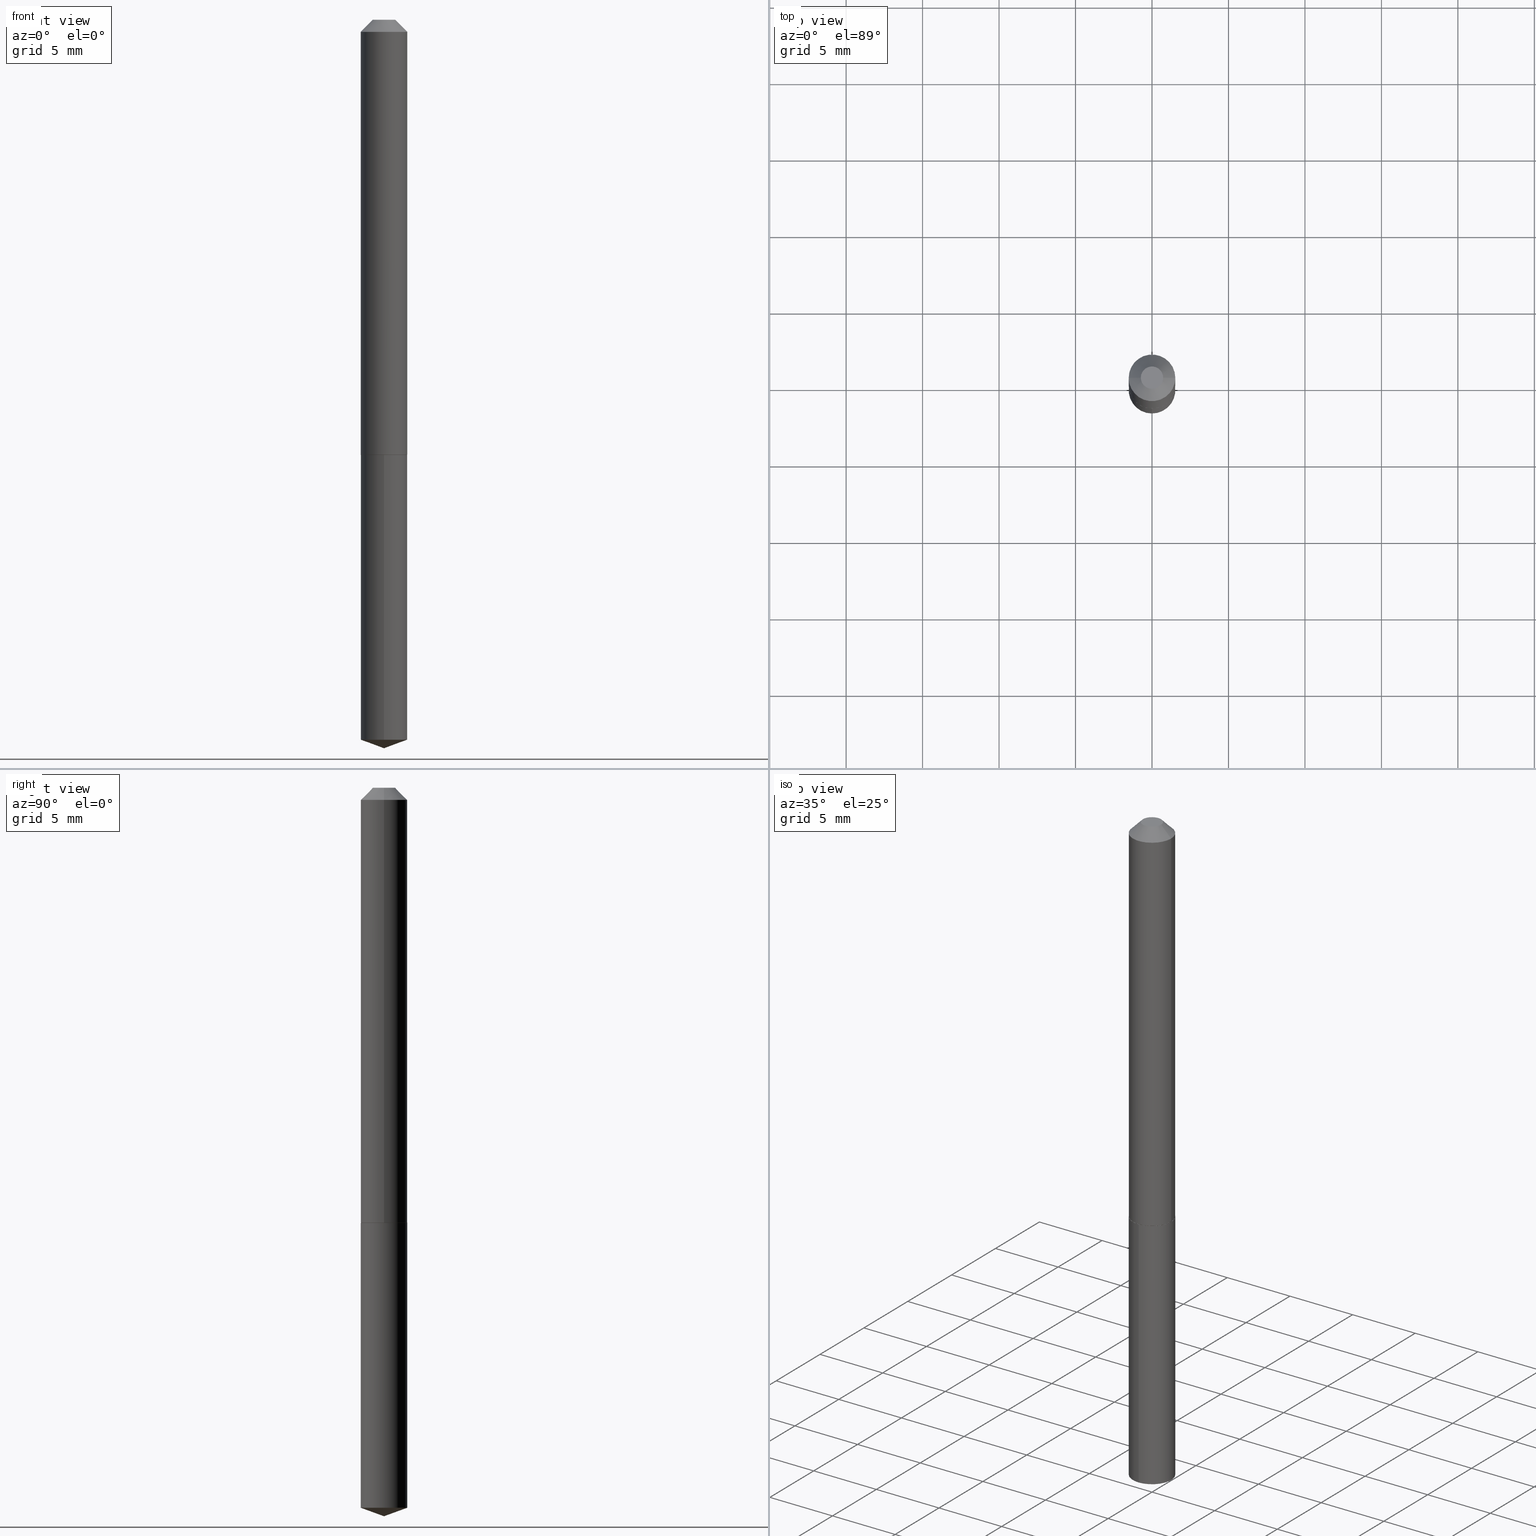
[diagram: canonical four-view strip — front | top / right | iso, engineering-drawing reading convention]
A machine part, canonical four-view strip (front | top / right | iso — engineering-drawing reading convention). The complete STEP part file that produces these views, byte-faithful:
ISO-10303-21;
HEADER;
FILE_DESCRIPTION (( 'STEP AP203' ),
    '1' );
FILE_NAME ('56031.STEP',
    '2024-04-22T19:52:19',
    ( '' ),
    ( '' ),
    'SwSTEP 2.0',
    'SolidWorks 2023',
    '' );
FILE_SCHEMA (( 'CONFIG_CONTROL_DESIGN' ));
ENDSEC;

DATA;
#1 = EDGE_CURVE ( 'NONE', #187, #121, #122, .T. ) ;
#2 = ORIENTED_EDGE ( 'NONE', *, *, #25, .T. ) ;
#3 = DIMENSIONAL_EXPONENTS ( 1.000000000000000000, 0.000000000000000000, 0.000000000000000000, 0.000000000000000000, 0.000000000000000000, 0.000000000000000000, 0.000000000000000000 ) ;
#4 = CARTESIAN_POINT ( 'NONE',  ( 4.534350247009199465E-29, -1.339308046643845730E-15, -1.120000000000000107 ) ) ;
#5 = ADVANCED_FACE ( 'NONE', ( #229 ), #17, .T. ) ;
#6 = AXIS2_PLACEMENT_3D ( 'NONE', #273, #215, #244 ) ;
#7 = VECTOR ( 'NONE', #178, 39.37007874015748143 ) ;
#8 = ORIENTED_EDGE ( 'NONE', *, *, #308, .T. ) ;
#9 = DIRECTION ( 'NONE',  ( -2.445468806185136597E-29, 3.491481338843145583E-15, 1.000000000000000000 ) ) ;
#10 =( NAMED_UNIT ( * ) PLANE_ANGLE_UNIT ( ) SI_UNIT ( $, .RADIAN. ) );
#11 = DIRECTION ( 'NONE',  ( -1.000000000000000000, 6.982962677686265922E-15, -4.876176775795935793E-29 ) ) ;
#12 = CC_DESIGN_PERSON_AND_ORGANIZATION_ASSIGNMENT ( #38, #216, ( #224 ) ) ;
#13 = CC_DESIGN_DATE_AND_TIME_ASSIGNMENT ( #129, #345, ( #291 ) ) ;
#14 = CARTESIAN_POINT ( 'NONE',  ( 7.642090019328600035E-31, -1.091087918388489897E-16, -0.03125000000000020123 ) ) ;
#15 = ADVANCED_FACE ( 'NONE', ( #86 ), #22, .T. ) ;
#16 = FACE_OUTER_BOUND ( 'NONE', #243, .T. ) ;
#17 = CYLINDRICAL_SURFACE ( 'NONE', #280, 0.05999999999999999778 ) ;
#18 = CC_DESIGN_PERSON_AND_ORGANIZATION_ASSIGNMENT ( #389, #167, ( #152 ) ) ;
#19 = VECTOR ( 'NONE', #195, 39.37007874015748143 ) ;
#20 = FACE_OUTER_BOUND ( 'NONE', #66, .T. ) ;
#21 = PERSON_AND_ORGANIZATION ( #159, #387 ) ;
#22 = CYLINDRICAL_SURFACE ( 'NONE', #116, 0.06000000000000007411 ) ;
#23 = CYLINDRICAL_SURFACE ( 'NONE', #316, 0.05999999999999999778 ) ;
#24 = VERTEX_POINT ( 'NONE', #382 ) ;
#25 = EDGE_CURVE ( 'NONE', #121, #187, #303, .T. ) ;
#26 = APPROVAL_STATUS ( 'not_yet_approved' ) ;
#27 = EDGE_LOOP ( 'NONE', ( #267, #359, #164, #363 ) ) ;
#28 = DIRECTION ( 'NONE',  ( -2.445468806185136877E-29, 3.491481338843145188E-15, 1.000000000000000000 ) ) ;
#29 = ORIENTED_EDGE ( 'NONE', *, *, #325, .T. ) ;
#30 = DATE_AND_TIME ( #214, #239 ) ;
#31 = FACE_OUTER_BOUND ( 'NONE', #356, .T. ) ;
#32 = CIRCLE ( 'NONE', #63, 0.05999999999999999778 ) ;
#33 = CC_DESIGN_APPROVAL ( #381, ( #152 ) ) ;
#34 = DIRECTION ( 'NONE',  ( -6.982962677686265922E-15, -1.000000000000000000, 4.553079989440439092E-15 ) ) ;
#35 = DATE_TIME_ROLE ( 'classification_date' ) ;
#36 = VERTEX_POINT ( 'NONE', #377 ) ;
#37 = EDGE_CURVE ( 'NONE', #42, #270, #379, .T. ) ;
#38 = PERSON_AND_ORGANIZATION ( #159, #387 ) ;
#39 = ORIENTED_EDGE ( 'NONE', *, *, #201, .T. ) ;
#40 = LINE ( 'NONE', #368, #314 ) ;
#41 =( GEOMETRIC_REPRESENTATION_CONTEXT ( 3 ) GLOBAL_UNCERTAINTY_ASSIGNED_CONTEXT ( ( #288 ) ) GLOBAL_UNIT_ASSIGNED_CONTEXT ( ( #144, #10, #143 ) ) REPRESENTATION_CONTEXT ( 'NONE', 'WORKASPACE' ) );
#42 = VERTEX_POINT ( 'NONE', #171 ) ;
#43 = DIRECTION ( 'NONE',  ( 0.7071067811864750752, -2.468850131081498176E-15, 0.7071067811866199593 ) ) ;
#44 =( LENGTH_UNIT ( ) NAMED_UNIT ( * ) SI_UNIT ( $, .METRE. ) );
#45 = ORIENTED_EDGE ( 'NONE', *, *, #84, .F. ) ;
#46 = LINE ( 'NONE', #177, #208 ) ;
#47 = COORDINATED_UNIVERSAL_TIME_OFFSET ( 5, 0, .BEHIND. ) ;
#48 = CARTESIAN_POINT ( 'NONE',  ( -9.168627954203891345E-28, 1.309230568771449334E-13, 37.49507874015748143 ) ) ;
#49 = AXIS2_PLACEMENT_3D ( 'NONE', #14, #113, #284 ) ;
#50 = EDGE_CURVE ( 'NONE', #366, #42, #131, .T. ) ;
#51 = FACE_OUTER_BOUND ( 'NONE', #319, .T. ) ;
#52 = CARTESIAN_POINT ( 'NONE',  ( 2.738925062927352899E-29, -3.910459099504323400E-15, -1.120000000000000107 ) ) ;
#53 = DIRECTION ( 'NONE',  ( 1.000000000000000000, -6.982962677686266711E-15, 0.000000000000000000 ) ) ;
#54 = COORDINATED_UNIVERSAL_TIME_OFFSET ( 5, 0, .BEHIND. ) ;
#55 = CONICAL_SURFACE ( 'NONE', #253, 0.06000000000000014350, 0.7853981633973459164 ) ;
#56 = COORDINATED_UNIVERSAL_TIME_OFFSET ( 5, 0, .BEHIND. ) ;
#57 = DIRECTION ( 'NONE',  ( -0.7071067811865452413, 2.468850131082233000E-15, -0.7071067811865497932 ) ) ;
#58 = EDGE_CURVE ( 'NONE', #270, #168, #371, .T. ) ;
#59 = VERTEX_POINT ( 'NONE', #376 ) ;
#60 = EDGE_CURVE ( 'NONE', #138, #121, #233, .T. ) ;
#61 = APPROVAL_STATUS ( 'not_yet_approved' ) ;
#62 = ORIENTED_EDGE ( 'NONE', *, *, #37, .F. ) ;
#63 = AXIS2_PLACEMENT_3D ( 'NONE', #226, #337, #310 ) ;
#64 = APPLICATION_PROTOCOL_DEFINITION ( 'international standard', 'config_control_design', 1994, #112 ) ;
#65 = LOCAL_TIME ( 15, 52, 19.00000000000000000, #47 ) ;
#66 = EDGE_LOOP ( 'NONE', ( #2, #318, #247, #236 ) ) ;
#67 = EDGE_CURVE ( 'NONE', #36, #296, #94, .T. ) ;
#68 = ORIENTED_EDGE ( 'NONE', *, *, #140, .T. ) ;
#69 = SECURITY_CLASSIFICATION_LEVEL ( 'unclassified' ) ;
#70 = EDGE_LOOP ( 'NONE', ( #390, #194 ) ) ;
#71 = ORIENTED_EDGE ( 'NONE', *, *, #67, .F. ) ;
#72 = EDGE_LOOP ( 'NONE', ( #313, #156, #190 ) ) ;
#73 = CARTESIAN_POINT ( 'NONE',  ( -0.06000000000000007411, 4.263256414560606381E-16, -2.951361054152947267E-30 ) ) ;
#74 = DIRECTION ( 'NONE',  ( 0.000000000000000000, 0.000000000000000000, 1.000000000000000000 ) ) ;
#75 = DESIGN_CONTEXT ( 'detailed design', #172, 'design' ) ;
#76 = ORIENTED_EDGE ( 'NONE', *, *, #58, .F. ) ;
#77 = CLOSED_SHELL ( 'NONE', ( #115, #203, #361, #257, #354, #15, #385, #145 ) ) ;
#78 = DIRECTION ( 'NONE',  ( 1.000000000000000000, -6.982962677686265922E-15, 4.876225828469308321E-29 ) ) ;
#79 = APPROVAL_DATE_TIME ( #290, #381 ) ;
#80 = CARTESIAN_POINT ( 'NONE',  ( 2.737702328524260097E-29, -3.908713358834901896E-15, -1.119499999999999940 ) ) ;
#81 = CARTESIAN_POINT ( 'NONE',  ( 7.642090019328600035E-31, -1.091087918388489897E-16, -0.03125000000000020123 ) ) ;
#82 = DIRECTION ( 'NONE',  ( 1.000000000000000000, -6.982962677686268288E-15, 0.000000000000000000 ) ) ;
#83 = CARTESIAN_POINT ( 'NONE',  ( 1.272805107011465365E-47, -1.817228364506215966E-33, -5.204748896376257902E-19 ) ) ;
#84 = EDGE_CURVE ( 'NONE', #138, #187, #184, .T. ) ;
#85 = APPROVAL_STATUS ( 'not_yet_approved' ) ;
#86 = FACE_OUTER_BOUND ( 'NONE', #241, .T. ) ;
#87 = APPROVAL_ROLE ( '' ) ;
#88 = APPROVAL ( #61, 'UNSPECIFIED' ) ;
#89 = DIRECTION ( 'NONE',  ( -6.561838499445205585E-15, -0.9396926207859077618, 0.3420201433256702117 ) ) ;
#90 = CIRCLE ( 'NONE', #352, 0.06000000000000014350 ) ;
#91 = AXIS2_PLACEMENT_3D ( 'NONE', #338, #74, #263 ) ;
#92 = ADVANCED_FACE ( 'NONE', ( #237 ), #146, .T. ) ;
#93 = PERSON_AND_ORGANIZATION ( #159, #387 ) ;
#94 = LINE ( 'NONE', #317, #386 ) ;
#95 = CARTESIAN_POINT ( 'NONE',  ( -0.06000000000000014350, -3.482387717378840223E-15, -1.119499999999999940 ) ) ;
#96 = DIRECTION ( 'NONE',  ( -2.445293592183444797E-29, 3.491732255266129750E-15, 1.000000000000000000 ) ) ;
#97 = VECTOR ( 'NONE', #89, 39.37007874015748854 ) ;
#98 = PERSON_AND_ORGANIZATION_ROLE ( 'creator' ) ;
#99 = EDGE_LOOP ( 'NONE', ( #126, #108 ) ) ;
#100 = AXIS2_PLACEMENT_3D ( 'NONE', #256, #248, #179 ) ;
#101 = ADVANCED_FACE ( 'NONE', ( #31 ), #163, .F. ) ;
#102 = LOCAL_TIME ( 15, 52, 19.00000000000000000, #162 ) ;
#103 = CARTESIAN_POINT ( 'NONE',  ( 4.263256414560874594E-16, 0.05999999999999609118, -1.120000000000000329 ) ) ;
#104 = CARTESIAN_POINT ( 'NONE',  ( 2.738925062927352899E-29, -3.910459099504323400E-15, -1.120000000000000107 ) ) ;
#105 = LINE ( 'NONE', #103, #7 ) ;
#106 = ORIENTED_EDGE ( 'NONE', *, *, #150, .T. ) ;
#107 = DIRECTION ( 'NONE',  ( -6.982962677686265922E-15, -1.000000000000000000, 4.553079989440439092E-15 ) ) ;
#108 = ORIENTED_EDGE ( 'NONE', *, *, #205, .T. ) ;
#109 = AXIS2_PLACEMENT_3D ( 'NONE', #48, #228, #114 ) ;
#110 = CARTESIAN_POINT ( 'NONE',  ( 0.000000000000000000, 0.000000000000000000, 0.000000000000000000 ) ) ;
#111 = AXIS2_PLACEMENT_3D ( 'NONE', #83, #139, #204 ) ;
#112 = APPLICATION_CONTEXT ( 'configuration controlled 3d designs of mechanical parts and assemblies' ) ;
#113 = DIRECTION ( 'NONE',  ( -2.445468806185136597E-29, 3.491481338843145583E-15, 1.000000000000000000 ) ) ;
#114 = DIRECTION ( 'NONE',  ( -6.982962677686268288E-15, -1.000000000000000000, 3.475157955500709564E-15 ) ) ;
#115 = ADVANCED_FACE ( 'NONE', ( #16 ), #251, .T. ) ;
#116 = AXIS2_PLACEMENT_3D ( 'NONE', #351, #374, #349 ) ;
#117 = LOCAL_TIME ( 15, 52, 19.00000000000000000, #54 ) ;
#118 = PRODUCT_DEFINITION_SHAPE ( 'NONE', 'NONE',  #291 ) ;
#119 = DIRECTION ( 'NONE',  ( -2.445468806185136597E-29, 3.491481338843145583E-15, 1.000000000000000000 ) ) ;
#120 = DIRECTION ( 'NONE',  ( -6.982962677686265922E-15, -1.000000000000000000, 4.553079989440439092E-15 ) ) ;
#121 = VERTEX_POINT ( 'NONE', #254 ) ;
#122 = CIRCLE ( 'NONE', #341, 0.05999999999999999778 ) ;
#123 = CIRCLE ( 'NONE', #135, 0.02875000000000000125 ) ;
#124 = CALENDAR_DATE ( 2024, 22, 4 ) ;
#125 = PERSON_AND_ORGANIZATION_ROLE ( 'design_owner' ) ;
#126 = ORIENTED_EDGE ( 'NONE', *, *, #255, .T. ) ;
#127 = DIRECTION ( 'NONE',  ( 6.676917655467970496E-15, 0.9396926207859102043, 0.3420201433256636059 ) ) ;
#128 = MANIFOLD_SOLID_BREP ( 'Body-Move/Copy2[1]', #174 ) ;
#129 = DATE_AND_TIME ( #271, #102 ) ;
#130 = ORIENTED_EDGE ( 'NONE', *, *, #242, .T. ) ;
#131 = CIRCLE ( 'NONE', #274, 0.05950000000000021244 ) ;
#132 = AXIS2_PLACEMENT_3D ( 'NONE', #4, #147, #306 ) ;
#133 = CARTESIAN_POINT ( 'NONE',  ( 7.642090019328600035E-31, -1.091087918388489897E-16, -0.03125000000000020123 ) ) ;
#134 = VECTOR ( 'NONE', #127, 39.37007874015749564 ) ;
#135 = AXIS2_PLACEMENT_3D ( 'NONE', #333, #279, #78 ) ;
#136 = CARTESIAN_POINT ( 'NONE',  ( -0.06000000000000014350, -3.482387717378840223E-15, -1.119499999999999940 ) ) ;
#137 = ADVANCED_FACE ( 'NONE', ( #176 ), #207, .T. ) ;
#138 = VERTEX_POINT ( 'NONE', #331 ) ;
#139 = DIRECTION ( 'NONE',  ( -2.445468806185136597E-29, 3.491481338843145583E-15, 1.000000000000000000 ) ) ;
#140 = EDGE_CURVE ( 'NONE', #24, #296, #217, .T. ) ;
#141 = EDGE_LOOP ( 'NONE', ( #238, #294, #300, #323 ) ) ;
#142 = CARTESIAN_POINT ( 'NONE',  ( -4.189777606611485306E-16, -0.06000000000000391132, -1.119999999999999885 ) ) ;
#143 =( NAMED_UNIT ( * ) SI_UNIT ( $, .STERADIAN. ) SOLID_ANGLE_UNIT ( ) );
#144 =( CONVERSION_BASED_UNIT ( 'INCH', #358 ) LENGTH_UNIT ( ) NAMED_UNIT ( #3 ) );
#145 = ADVANCED_FACE ( 'NONE', ( #225 ), #312, .F. ) ;
#146 = CONICAL_SURFACE ( 'NONE', #188, 108.1684023407337918, 1.221730476396032605 ) ;
#147 = DIRECTION ( 'NONE',  ( -2.438088387897960049E-29, 3.491481338843145188E-15, 1.000000000000000000 ) ) ;
#148 = DIRECTION ( 'NONE',  ( 2.438088387897960049E-29, -3.491481338843145188E-15, -1.000000000000000000 ) ) ;
#149 = DIRECTION ( 'NONE',  ( -2.445468806185136597E-29, 3.491481338843145583E-15, 1.000000000000000000 ) ) ;
#150 = EDGE_CURVE ( 'NONE', #59, #24, #40, .T. ) ;
#151 = AXIS2_PLACEMENT_3D ( 'NONE', #309, #148, #11 ) ;
#152 = SECURITY_CLASSIFICATION ( '', '', #69 ) ;
#153 = EDGE_CURVE ( 'NONE', #270, #296, #364, .T. ) ;
#154 = CARTESIAN_POINT ( 'NONE',  ( 4.531720880130055286E-29, -6.470463755813608205E-15, -1.853161785944028139 ) ) ;
#155 = APPROVAL_ROLE ( '' ) ;
#156 = ORIENTED_EDGE ( 'NONE', *, *, #84, .T. ) ;
#157 = DIRECTION ( 'NONE',  ( -2.445293592183444797E-29, 3.491732255266129750E-15, 1.000000000000000000 ) ) ;
#158 = APPROVAL_ROLE ( '' ) ;
#159 = PERSON ( 'UNSPECIFIED', 'UNSPECIFIED', 'UNSPECIFIED', ('UNSPECIFIED'), ('UNSPECIFIED'), ('UNSPECIFIED') ) ;
#160 = ORIENTED_EDGE ( 'NONE', *, *, #255, .F. ) ;
#161 = LOCAL_TIME ( 15, 52, 19.00000000000000000, #265 ) ;
#162 = COORDINATED_UNIVERSAL_TIME_OFFSET ( 5, 0, .BEHIND. ) ;
#163 = PLANE ( 'NONE',  #6 ) ;
#164 = ORIENTED_EDGE ( 'NONE', *, *, #189, .F. ) ;
#165 = EDGE_CURVE ( 'NONE', #296, #24, #32, .T. ) ;
#166 = AXIS2_PLACEMENT_3D ( 'NONE', #81, #175, #219 ) ;
#167 = PERSON_AND_ORGANIZATION_ROLE ( 'classification_officer' ) ;
#168 = VERTEX_POINT ( 'NONE', #367 ) ;
#169 = ORIENTED_EDGE ( 'NONE', *, *, #210, .T. ) ;
#170 = CC_DESIGN_DATE_AND_TIME_ASSIGNMENT ( #192, #35, ( #152 ) ) ;
#171 = CARTESIAN_POINT ( 'NONE',  ( -0.05950000000000021244, -3.485036944552951424E-15, -1.120000000000000107 ) ) ;
#172 = APPLICATION_CONTEXT ( 'configuration controlled 3d designs of mechanical parts and assemblies' ) ;
#173 = FACE_OUTER_BOUND ( 'NONE', #380, .T. ) ;
#174 = CLOSED_SHELL ( 'NONE', ( #295, #92, #137, #5, #101 ) ) ;
#175 = DIRECTION ( 'NONE',  ( 2.445468806185136597E-29, -3.491481338843145583E-15, -1.000000000000000000 ) ) ;
#176 = FACE_OUTER_BOUND ( 'NONE', #278, .T. ) ;
#177 = CARTESIAN_POINT ( 'NONE',  ( 0.06000000000000014350, -4.327691119496078530E-15, -1.119499999999999940 ) ) ;
#178 = DIRECTION ( 'NONE',  ( -2.445293592183444516E-29, 3.491732255266129750E-15, 1.000000000000000000 ) ) ;
#179 = DIRECTION ( 'NONE',  ( -6.982962677686265922E-15, -1.000000000000000000, 4.553079989440439092E-15 ) ) ;
#180 = CC_DESIGN_PERSON_AND_ORGANIZATION_ASSIGNMENT ( #93, #383, ( #291 ) ) ;
#181 = DIRECTION ( 'NONE',  ( 1.000000000000000000, -6.982962677686268288E-15, 0.000000000000000000 ) ) ;
#182 = AXIS2_PLACEMENT_3D ( 'NONE', #261, #119, #181 ) ;
#183 = CIRCLE ( 'NONE', #342, 0.05950000000000021244 ) ;
#184 = LINE ( 'NONE', #326, #134 ) ;
#185 = ORIENTED_EDGE ( 'NONE', *, *, #320, .T. ) ;
#186 = APPROVAL_DATE_TIME ( #348, #324 ) ;
#187 = VERTEX_POINT ( 'NONE', #221 ) ;
#188 = AXIS2_PLACEMENT_3D ( 'NONE', #212, #96, #321 ) ;
#189 = EDGE_CURVE ( 'NONE', #168, #270, #90, .T. ) ;
#190 = ORIENTED_EDGE ( 'NONE', *, *, #25, .F. ) ;
#191 = PRODUCT ( '56031', '56031', '', ( #375 ) ) ;
#192 = DATE_AND_TIME ( #276, #65 ) ;
#193 = ORIENTED_EDGE ( 'NONE', *, *, #58, .T. ) ;
#194 = ORIENTED_EDGE ( 'NONE', *, *, #308, .F. ) ;
#195 = DIRECTION ( 'NONE',  ( -2.445468806185136877E-29, 3.491481338843145188E-15, 1.000000000000000000 ) ) ;
#196 = AXIS2_PLACEMENT_3D ( 'NONE', #110, #9, #340 ) ;
#197 = VERTEX_POINT ( 'NONE', #282 ) ;
#198 = FACE_OUTER_BOUND ( 'NONE', #70, .T. ) ;
#199 = DIRECTION ( 'NONE',  ( -2.445293592183444797E-29, 3.491732255266129750E-15, 1.000000000000000000 ) ) ;
#200 = CC_DESIGN_PERSON_AND_ORGANIZATION_ASSIGNMENT ( #293, #98, ( #224 ) ) ;
#201 = EDGE_CURVE ( 'NONE', #197, #272, #266, .T. ) ;
#202 = DIRECTION ( 'NONE',  ( 1.000000000000000000, -6.982962677686268288E-15, 0.000000000000000000 ) ) ;
#203 = ADVANCED_FACE ( 'NONE', ( #250 ), #287, .T. ) ;
#204 = DIRECTION ( 'NONE',  ( 1.000000000000000000, -6.982962677686265922E-15, 4.876225828469308321E-29 ) ) ;
#205 = EDGE_CURVE ( 'NONE', #59, #36, #357, .T. ) ;
#206 = DIRECTION ( 'NONE',  ( -2.445293592183444797E-29, 3.491732255266129750E-15, 1.000000000000000000 ) ) ;
#207 = CONICAL_SURFACE ( 'NONE', #109, 108.1684023407337918, 1.221730476396032605 ) ;
#208 = VECTOR ( 'NONE', #43, 39.37007874015748143 ) ;
#209 = APPROVAL_DATE_TIME ( #30, #88 ) ;
#210 = EDGE_CURVE ( 'NONE', #366, #168, #46, .T. ) ;
#211 = PERSON_AND_ORGANIZATION ( #159, #387 ) ;
#212 = CARTESIAN_POINT ( 'NONE',  ( -9.168627954203891345E-28, 1.309230568771449334E-13, 37.49507874015748143 ) ) ;
#213 = APPROVAL_PERSON_ORGANIZATION ( #211, #88, #87 ) ;
#214 = CALENDAR_DATE ( 2024, 22, 4 ) ;
#215 = DIRECTION ( 'NONE',  ( 2.445293592183444516E-29, -3.491732255266129750E-15, -1.000000000000000000 ) ) ;
#216 = PERSON_AND_ORGANIZATION_ROLE ( 'design_supplier' ) ;
#217 = CIRCLE ( 'NONE', #49, 0.05999999999999999778 ) ;
#218 = VECTOR ( 'NONE', #28, 39.37007874015748143 ) ;
#219 = DIRECTION ( 'NONE',  ( -1.000000000000000000, 6.982962677686267499E-15, 0.000000000000000000 ) ) ;
#220 = DIRECTION ( 'NONE',  ( -1.000000000000000000, 6.982962677686267499E-15, 0.000000000000000000 ) ) ;
#221 = CARTESIAN_POINT ( 'NONE',  ( 4.263256414561051594E-16, 0.05999999999999350991, -1.853161785944028361 ) ) ;
#222 = DIRECTION ( 'NONE',  ( 1.000000000000000000, -6.982962677686266711E-15, 0.000000000000000000 ) ) ;
#223 = VECTOR ( 'NONE', #347, 39.37007874015748143 ) ;
#224 = PRODUCT_DEFINITION_FORMATION_WITH_SPECIFIED_SOURCE ( 'ANY', '', #191, .NOT_KNOWN. ) ;
#225 = FACE_OUTER_BOUND ( 'NONE', #99, .T. ) ;
#226 = CARTESIAN_POINT ( 'NONE',  ( 7.642090019328600035E-31, -1.091087918388489897E-16, -0.03125000000000020123 ) ) ;
#227 = DIRECTION ( 'NONE',  ( -2.445468806185136597E-29, 3.491481338843145583E-15, 1.000000000000000000 ) ) ;
#228 = DIRECTION ( 'NONE',  ( -2.445293592183444797E-29, 3.491732255266129750E-15, 1.000000000000000000 ) ) ;
#229 = FACE_OUTER_BOUND ( 'NONE', #299, .T. ) ;
#230 = CARTESIAN_POINT ( 'NONE',  ( 2.738925062927352899E-29, -3.910459099504323400E-15, -1.120000000000000107 ) ) ;
#231 = DIRECTION ( 'NONE',  ( -2.445293592183444797E-29, 3.491732255266129750E-15, 1.000000000000000000 ) ) ;
#232 = CARTESIAN_POINT ( 'NONE',  ( -4.189777606611485306E-16, -0.06000000000000391132, -1.119999999999999885 ) ) ;
#233 = LINE ( 'NONE', #260, #97 ) ;
#234 = CALENDAR_DATE ( 2024, 22, 4 ) ;
#235 = PERSON_AND_ORGANIZATION ( #159, #387 ) ;
#236 = ORIENTED_EDGE ( 'NONE', *, *, #325, .F. ) ;
#237 = FACE_OUTER_BOUND ( 'NONE', #72, .T. ) ;
#238 = ORIENTED_EDGE ( 'NONE', *, *, #189, .T. ) ;
#239 = LOCAL_TIME ( 15, 52, 19.00000000000000000, #56 ) ;
#240 = ORIENTED_EDGE ( 'NONE', *, *, #165, .F. ) ;
#241 = EDGE_LOOP ( 'NONE', ( #355, #193, #185, #240 ) ) ;
#242 = EDGE_CURVE ( 'NONE', #272, #197, #259, .T. ) ;
#243 = EDGE_LOOP ( 'NONE', ( #264, #106, #68, #71 ) ) ;
#244 = DIRECTION ( 'NONE',  ( 6.982962677686265922E-15, 1.000000000000000000, -3.491732255266129750E-15 ) ) ;
#245 = CARTESIAN_POINT ( 'NONE',  ( -0.05999999999999999778, -1.582585433880813825E-15, -0.03125000000000020123 ) ) ;
#246 = MANIFOLD_SOLID_BREP ( 'Body-Move/Copy2[2]', #77 ) ;
#247 = ORIENTED_EDGE ( 'NONE', *, *, #242, .F. ) ;
#248 = DIRECTION ( 'NONE',  ( -2.445293592183444797E-29, 3.491732255266129750E-15, 1.000000000000000000 ) ) ;
#249 = ORIENTED_EDGE ( 'NONE', *, *, #1, .T. ) ;
#250 = FACE_OUTER_BOUND ( 'NONE', #141, .T. ) ;
#251 = CONICAL_SURFACE ( 'NONE', #166, 0.05999999999999999778, 0.7853981633974450594 ) ;
#252 = DIRECTION ( 'NONE',  ( -2.445293592183444516E-29, 3.491732255266129750E-15, 1.000000000000000000 ) ) ;
#253 = AXIS2_PLACEMENT_3D ( 'NONE', #286, #227, #82 ) ;
#254 = CARTESIAN_POINT ( 'NONE',  ( -4.189777606611305347E-16, -0.06000000000000644401, -1.853161785944027695 ) ) ;
#255 = EDGE_CURVE ( 'NONE', #36, #59, #123, .T. ) ;
#256 = CARTESIAN_POINT ( 'NONE',  ( 2.738925062927352899E-29, -3.910459099504323400E-15, -1.120000000000000107 ) ) ;
#257 = ADVANCED_FACE ( 'NONE', ( #198 ), #285, .F. ) ;
#258 = LINE ( 'NONE', #232, #268 ) ;
#259 = CIRCLE ( 'NONE', #297, 0.05999999999999999778 ) ;
#260 = CARTESIAN_POINT ( 'NONE',  ( 4.584925485343958748E-29, -6.546997978623994317E-15, -1.875000000000000000 ) ) ;
#261 = CARTESIAN_POINT ( 'NONE',  ( 2.737702328524260097E-29, -3.908713358834901896E-15, -1.119499999999999940 ) ) ;
#262 = DIRECTION ( 'NONE',  ( -6.982962677686265922E-15, -1.000000000000000000, 4.553079989440439092E-15 ) ) ;
#263 = DIRECTION ( 'NONE',  ( 1.000000000000000000, 0.000000000000000000, 0.000000000000000000 ) ) ;
#264 = ORIENTED_EDGE ( 'NONE', *, *, #205, .F. ) ;
#265 = COORDINATED_UNIVERSAL_TIME_OFFSET ( 5, 0, .BEHIND. ) ;
#266 = CIRCLE ( 'NONE', #100, 0.05999999999999999778 ) ;
#267 = ORIENTED_EDGE ( 'NONE', *, *, #50, .T. ) ;
#268 = VECTOR ( 'NONE', #252, 39.37007874015748143 ) ;
#269 = DIRECTION ( 'NONE',  ( -2.445293592183444797E-29, 3.491732255266129750E-15, 1.000000000000000000 ) ) ;
#270 = VERTEX_POINT ( 'NONE', #136 ) ;
#271 = CALENDAR_DATE ( 2024, 22, 4 ) ;
#272 = VERTEX_POINT ( 'NONE', #142 ) ;
#273 = CARTESIAN_POINT ( 'NONE',  ( 2.738925062927352899E-29, -3.910459099504323400E-15, -1.120000000000000107 ) ) ;
#274 = AXIS2_PLACEMENT_3D ( 'NONE', #332, #343, #53 ) ;
#275 = CC_DESIGN_APPROVAL ( #324, ( #224 ) ) ;
#276 = CALENDAR_DATE ( 2024, 22, 4 ) ;
#277 = ORIENTED_EDGE ( 'NONE', *, *, #373, .F. ) ;
#278 = EDGE_LOOP ( 'NONE', ( #45, #301, #330 ) ) ;
#279 = DIRECTION ( 'NONE',  ( -2.445468806185136597E-29, 3.491481338843145583E-15, 1.000000000000000000 ) ) ;
#280 = AXIS2_PLACEMENT_3D ( 'NONE', #344, #157, #262 ) ;
#281 = CONICAL_SURFACE ( 'NONE', #328, 0.06000000000000014350, 0.7853981633973459164 ) ;
#282 = CARTESIAN_POINT ( 'NONE',  ( 4.263256414561055539E-16, 0.05999999999999609118, -1.120000000000000329 ) ) ;
#283 = ORIENTED_EDGE ( 'NONE', *, *, #201, .F. ) ;
#284 = DIRECTION ( 'NONE',  ( 1.000000000000000000, -6.982962677686267499E-15, 0.000000000000000000 ) ) ;
#285 = PLANE ( 'NONE',  #132 ) ;
#286 = CARTESIAN_POINT ( 'NONE',  ( 2.737702328524260097E-29, -3.908713358834901896E-15, -1.119499999999999940 ) ) ;
#287 = CYLINDRICAL_SURFACE ( 'NONE', #196, 0.06000000000000007411 ) ;
#288 = UNCERTAINTY_MEASURE_WITH_UNIT (LENGTH_MEASURE( 1.000000000000000082E-05 ), #144, 'distance_accuracy_value', 'NONE');
#289 = DIRECTION ( 'NONE',  ( 2.445468806185136597E-29, -3.491481338843145583E-15, -1.000000000000000000 ) ) ;
#290 = DATE_AND_TIME ( #234, #117 ) ;
#291 = PRODUCT_DEFINITION ( 'UNKNOWN', '', #224, #75 ) ;
#292 = PERSON_AND_ORGANIZATION ( #159, #387 ) ;
#293 = PERSON_AND_ORGANIZATION ( #159, #387 ) ;
#294 = ORIENTED_EDGE ( 'NONE', *, *, #153, .T. ) ;
#295 = ADVANCED_FACE ( 'NONE', ( #20 ), #23, .T. ) ;
#296 = VERTEX_POINT ( 'NONE', #245 ) ;
#297 = AXIS2_PLACEMENT_3D ( 'NONE', #52, #199, #107 ) ;
#298 = CC_DESIGN_PERSON_AND_ORGANIZATION_ASSIGNMENT ( #235, #125, ( #191 ) ) ;
#299 = EDGE_LOOP ( 'NONE', ( #277, #249, #29, #283 ) ) ;
#300 = ORIENTED_EDGE ( 'NONE', *, *, #140, .F. ) ;
#301 = ORIENTED_EDGE ( 'NONE', *, *, #60, .T. ) ;
#302 = DIRECTION ( 'NONE',  ( 0.7071067811865452413, -7.319954787623248157E-15, -0.7071067811865497932 ) ) ;
#303 = CIRCLE ( 'NONE', #327, 0.05999999999999999778 ) ;
#304 = CC_DESIGN_APPROVAL ( #88, ( #291 ) ) ;
#305 = ADVANCED_BREP_SHAPE_REPRESENTATION ( '56031', ( #128, #246, #91 ), #41 ) ;
#306 = DIRECTION ( 'NONE',  ( 1.000000000000000000, -6.982962677686265922E-15, 4.876176775795935793E-29 ) ) ;
#307 = LINE ( 'NONE', #370, #218 ) ;
#308 = EDGE_CURVE ( 'NONE', #42, #366, #183, .T. ) ;
#309 = CARTESIAN_POINT ( 'NONE',  ( 6.364025535057326824E-48, -9.086141822531079831E-34, -2.602374448188128951E-19 ) ) ;
#310 = DIRECTION ( 'NONE',  ( 1.000000000000000000, -6.982962677686267499E-15, 0.000000000000000000 ) ) ;
#311 = DIRECTION ( 'NONE',  ( -6.982962677686265922E-15, -1.000000000000000000, 4.553079989440439092E-15 ) ) ;
#312 = PLANE ( 'NONE',  #151 ) ;
#313 = ORIENTED_EDGE ( 'NONE', *, *, #60, .F. ) ;
#314 = VECTOR ( 'NONE', #302, 39.37007874015748143 ) ;
#315 = APPLICATION_PROTOCOL_DEFINITION ( 'international standard', 'config_control_design', 1994, #172 ) ;
#316 = AXIS2_PLACEMENT_3D ( 'NONE', #230, #206, #34 ) ;
#317 = CARTESIAN_POINT ( 'NONE',  ( -0.05999999999999999778, 3.098689688223269907E-16, -0.03125000000000020123 ) ) ;
#318 = ORIENTED_EDGE ( 'NONE', *, *, #373, .T. ) ;
#319 = EDGE_LOOP ( 'NONE', ( #388, #160, #384, #329 ) ) ;
#320 = EDGE_CURVE ( 'NONE', #168, #24, #307, .T. ) ;
#321 = DIRECTION ( 'NONE',  ( -6.982962677686268288E-15, -1.000000000000000000, 3.475157955500709564E-15 ) ) ;
#322 = CC_DESIGN_SECURITY_CLASSIFICATION ( #152, ( #224 ) ) ;
#323 = ORIENTED_EDGE ( 'NONE', *, *, #320, .F. ) ;
#324 = APPROVAL ( #26, 'UNSPECIFIED' ) ;
#325 = EDGE_CURVE ( 'NONE', #121, #272, #258, .T. ) ;
#326 = CARTESIAN_POINT ( 'NONE',  ( 4.585321406288484259E-29, -6.546435925836509561E-15, -1.875000000000000000 ) ) ;
#327 = AXIS2_PLACEMENT_3D ( 'NONE', #154, #269, #120 ) ;
#328 = AXIS2_PLACEMENT_3D ( 'NONE', #80, #362, #339 ) ;
#329 = ORIENTED_EDGE ( 'NONE', *, *, #165, .T. ) ;
#330 = ORIENTED_EDGE ( 'NONE', *, *, #1, .F. ) ;
#331 = CARTESIAN_POINT ( 'NONE',  ( 4.584925485343958748E-29, -6.546997978623994317E-15, -1.875000000000000000 ) ) ;
#332 = CARTESIAN_POINT ( 'NONE',  ( 2.738925062927352899E-29, -3.910459099504323400E-15, -1.120000000000000107 ) ) ;
#333 = CARTESIAN_POINT ( 'NONE',  ( 1.272805107011465365E-47, -1.817228364506215966E-33, -5.204748896376257902E-19 ) ) ;
#334 = CONICAL_SURFACE ( 'NONE', #372, 0.05999999999999999778, 0.7853981633974450594 ) ;
#335 = FACE_OUTER_BOUND ( 'NONE', #27, .T. ) ;
#336 = CARTESIAN_POINT ( 'NONE',  ( 4.531720880130055286E-29, -6.470463755813608205E-15, -1.853161785944028139 ) ) ;
#337 = DIRECTION ( 'NONE',  ( -2.445468806185136597E-29, 3.491481338843145583E-15, 1.000000000000000000 ) ) ;
#338 = CARTESIAN_POINT ( 'NONE',  ( 0.000000000000000000, 0.000000000000000000, 0.000000000000000000 ) ) ;
#339 = DIRECTION ( 'NONE',  ( 1.000000000000000000, -6.982962677686268288E-15, 0.000000000000000000 ) ) ;
#340 = DIRECTION ( 'NONE',  ( 1.000000000000000000, -6.982962677686266711E-15, 4.876176775795936353E-29 ) ) ;
#341 = AXIS2_PLACEMENT_3D ( 'NONE', #336, #231, #311 ) ;
#342 = AXIS2_PLACEMENT_3D ( 'NONE', #104, #149, #222 ) ;
#343 = DIRECTION ( 'NONE',  ( -2.445468806185136597E-29, 3.491481338843145583E-15, 1.000000000000000000 ) ) ;
#344 = CARTESIAN_POINT ( 'NONE',  ( 2.738925062927352899E-29, -3.910459099504323400E-15, -1.120000000000000107 ) ) ;
#345 = DATE_TIME_ROLE ( 'creation_date' ) ;
#346 = APPROVAL_PERSON_ORGANIZATION ( #292, #324, #158 ) ;
#347 = DIRECTION ( 'NONE',  ( -0.7071067811864750752, 7.493145998870092258E-15, 0.7071067811866199593 ) ) ;
#348 = DATE_AND_TIME ( #124, #161 ) ;
#349 = DIRECTION ( 'NONE',  ( 1.000000000000000000, -6.982962677686266711E-15, 4.876176775795936353E-29 ) ) ;
#350 = PRODUCT_RELATED_PRODUCT_CATEGORY ( 'detail', '', ( #191 ) ) ;
#351 = CARTESIAN_POINT ( 'NONE',  ( 0.000000000000000000, 0.000000000000000000, 0.000000000000000000 ) ) ;
#352 = AXIS2_PLACEMENT_3D ( 'NONE', #369, #360, #202 ) ;
#353 = APPROVAL_PERSON_ORGANIZATION ( #21, #381, #155 ) ;
#354 = ADVANCED_FACE ( 'NONE', ( #173 ), #55, .T. ) ;
#355 = ORIENTED_EDGE ( 'NONE', *, *, #153, .F. ) ;
#356 = EDGE_LOOP ( 'NONE', ( #130, #39 ) ) ;
#357 = CIRCLE ( 'NONE', #111, 0.02875000000000000125 ) ;
#358 = LENGTH_MEASURE_WITH_UNIT ( LENGTH_MEASURE( 0.02539999999999999897 ), #44 );
#359 = ORIENTED_EDGE ( 'NONE', *, *, #37, .T. ) ;
#360 = DIRECTION ( 'NONE',  ( -2.445468806185136597E-29, 3.491481338843145583E-15, 1.000000000000000000 ) ) ;
#361 = ADVANCED_FACE ( 'NONE', ( #335 ), #281, .T. ) ;
#362 = DIRECTION ( 'NONE',  ( -2.445468806185136597E-29, 3.491481338843145583E-15, 1.000000000000000000 ) ) ;
#363 = ORIENTED_EDGE ( 'NONE', *, *, #210, .F. ) ;
#364 = LINE ( 'NONE', #73, #19 ) ;
#365 = CARTESIAN_POINT ( 'NONE',  ( 0.05950000000000021244, -4.325945378826657815E-15, -1.120000000000000107 ) ) ;
#366 = VERTEX_POINT ( 'NONE', #365 ) ;
#367 = CARTESIAN_POINT ( 'NONE',  ( 0.06000000000000014350, -4.327691119496078530E-15, -1.119499999999999940 ) ) ;
#368 = CARTESIAN_POINT ( 'NONE',  ( 0.05999999999999999778, -5.207386717051408918E-16, -0.03125000000000020123 ) ) ;
#369 = CARTESIAN_POINT ( 'NONE',  ( 2.737702328524260097E-29, -3.908713358834901896E-15, -1.119499999999999940 ) ) ;
#370 = CARTESIAN_POINT ( 'NONE',  ( 0.06000000000000007411, -4.189777606611765351E-16, 2.925706065477565259E-30 ) ) ;
#371 = CIRCLE ( 'NONE', #182, 0.06000000000000014350 ) ;
#372 = AXIS2_PLACEMENT_3D ( 'NONE', #133, #289, #220 ) ;
#373 = EDGE_CURVE ( 'NONE', #187, #197, #105, .T. ) ;
#374 = DIRECTION ( 'NONE',  ( -2.445468806185136597E-29, 3.491481338843145583E-15, 1.000000000000000000 ) ) ;
#375 = MECHANICAL_CONTEXT ( 'NONE', #112, 'mechanical' ) ;
#376 = CARTESIAN_POINT ( 'NONE',  ( 0.02875000000000000125, -3.589889945705362102E-16, -5.204748896356692380E-19 ) ) ;
#377 = CARTESIAN_POINT ( 'NONE',  ( -0.02875000000000000125, 2.553145729029035744E-16, -5.204748896392202676E-19 ) ) ;
#378 = SHAPE_DEFINITION_REPRESENTATION ( #118, #305 ) ;
#379 = LINE ( 'NONE', #95, #223 ) ;
#380 = EDGE_LOOP ( 'NONE', ( #62, #8, #169, #76 ) ) ;
#381 = APPROVAL ( #85, 'UNSPECIFIED' ) ;
#382 = CARTESIAN_POINT ( 'NONE',  ( 0.05999999999999999778, -5.280865525000250441E-16, -0.03125000000000020123 ) ) ;
#383 = PERSON_AND_ORGANIZATION_ROLE ( 'creator' ) ;
#384 = ORIENTED_EDGE ( 'NONE', *, *, #67, .T. ) ;
#385 = ADVANCED_FACE ( 'NONE', ( #51 ), #334, .T. ) ;
#386 = VECTOR ( 'NONE', #57, 39.37007874015748143 ) ;
#387 = ORGANIZATION ( 'UNSPECIFIED', 'UNSPECIFIED', '' ) ;
#388 = ORIENTED_EDGE ( 'NONE', *, *, #150, .F. ) ;
#389 = PERSON_AND_ORGANIZATION ( #159, #387 ) ;
#390 = ORIENTED_EDGE ( 'NONE', *, *, #50, .F. ) ;
ENDSEC;
END-ISO-10303-21;
